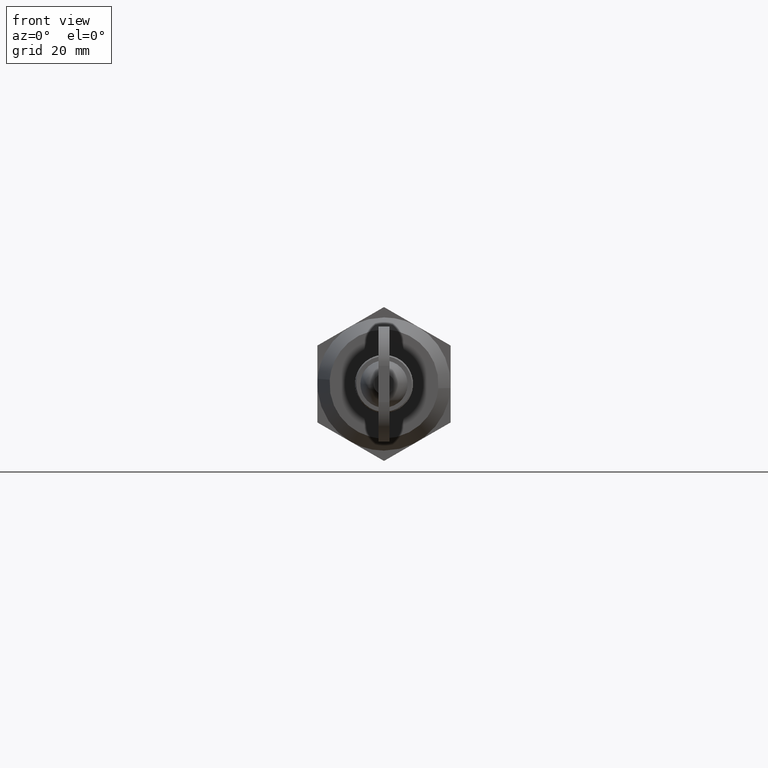
[diagram: clean part render]
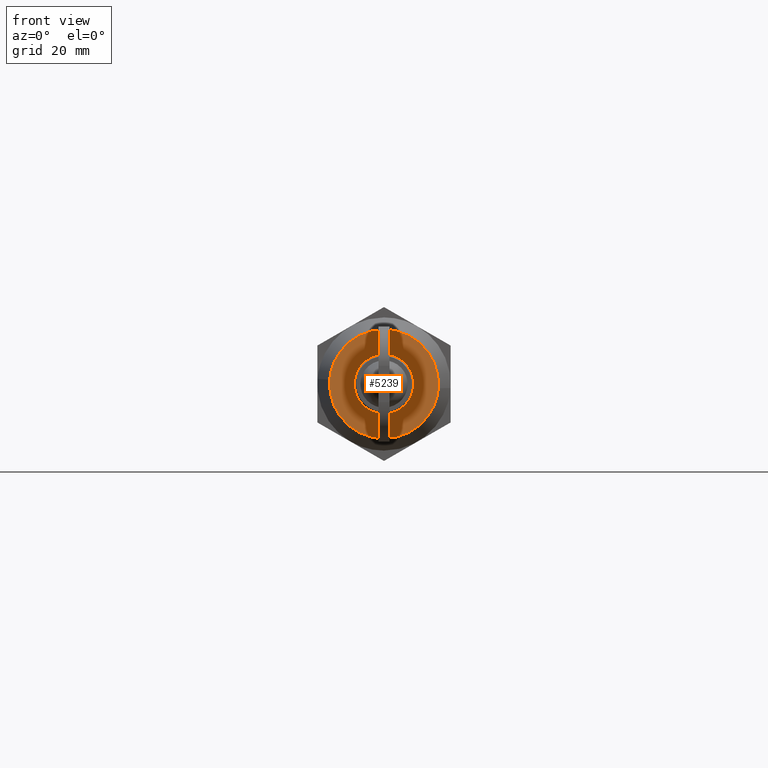
[diagram: same view with one face highlighted and labeled with its STEP entity id]
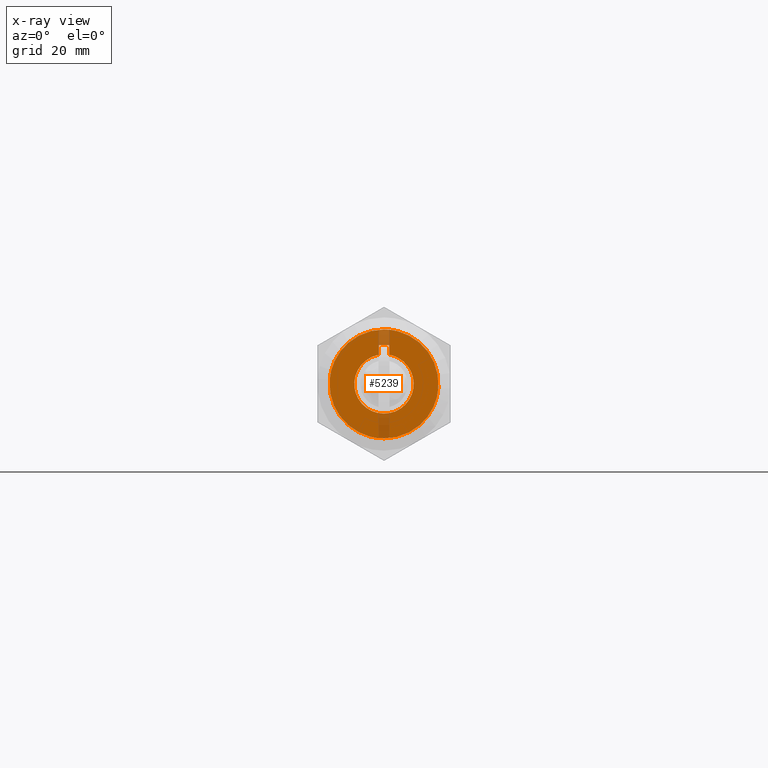
[diagram: x-ray of the same camera — body ghosted, the highlighted face saturated]
A machine part, front view. The second image highlights one B-rep face of the part: STEP entity #5239.
The next image is the same camera in x-ray: the body ghosted, the highlighted face saturated — about 7% of this face is hidden behind the body in this view.
In plain terms, the highlighted face is a freeform B-spline surface patch.
Its self-contained STEP definition (entity closure, byte-faithful):
#3572=CARTESIAN_POINT('',(0.000008000004097,8.967174715948481,0.705731955561907));
#3573=VERTEX_POINT('',#3572);
#3579=CARTESIAN_POINT('',(0.000008000000022,0.0,8.994903000000210));
#3580=VERTEX_POINT('',#3579);
#3581=CARTESIAN_POINT('',(0.000008000000022,0.0,8.994903000000210));
#3582=CARTESIAN_POINT('',(0.000008000000022,8.314802806547039,8.994903000000210));
#3583=CARTESIAN_POINT('',(0.000008000004097,8.967174715948481,0.705731955561907));
#3591=(BOUNDED_CURVE()B_SPLINE_CURVE(2,(#3581,#3582,#3583),.UNSPECIFIED.,.F.,.U.)B_SPLINE_CURVE_WITH_KNOTS((3,3),(0.0,0.236331300631924),.UNSPECIFIED.)CURVE()GEOMETRIC_REPRESENTATION_ITEM()RATIONAL_B_SPLINE_CURVE((1.0,0.723120658606185,0.969723356170055))REPRESENTATION_ITEM(''));
#3592=EDGE_CURVE('',#3580,#3573,#3591,.T.);
#3594=CARTESIAN_POINT('',(0.000008000004098,-8.967174715948481,-0.705731955561906));
#3595=VERTEX_POINT('',#3594);
#3596=CARTESIAN_POINT('',(0.000008000004098,-8.967174715948481,-0.705731955561906));
#3597=CARTESIAN_POINT('',(0.000008000000022,-8.994903000000210,-0.353410701415777));
#3598=CARTESIAN_POINT('',(0.000008000000022,-8.994903000000210,0.0));
#3599=CARTESIAN_POINT('',(0.000008000000022,-8.994903000000210,8.994903000000210));
#3600=CARTESIAN_POINT('',(0.000008000000022,0.0,8.994903000000210));
#3608=(BOUNDED_CURVE()B_SPLINE_CURVE(2,(#3596,#3597,#3598,#3599,#3600),.UNSPECIFIED.,.F.,.U.)B_SPLINE_CURVE_WITH_KNOTS((3,2,3),(0.736331300631924,0.750000000000000,1.0),.UNSPECIFIED.)CURVE()GEOMETRIC_REPRESENTATION_ITEM()RATIONAL_B_SPLINE_CURVE((0.969723356170055,0.983986122580363,1.0,0.707106781186547,1.0))REPRESENTATION_ITEM(''));
#3609=EDGE_CURVE('',#3595,#3580,#3608,.T.);
#3646=CARTESIAN_POINT('',(0.000008000000022,0.0,-8.994903000000210));
#3647=VERTEX_POINT('',#3646);
#3648=CARTESIAN_POINT('',(0.000008000000022,0.0,-8.994903000000210));
#3649=CARTESIAN_POINT('',(0.000008000000022,-8.314802806547093,-8.994903000000210));
#3650=CARTESIAN_POINT('',(0.000008000004098,-8.967174715948481,-0.705731955561906));
#3658=(BOUNDED_CURVE()B_SPLINE_CURVE(2,(#3648,#3649,#3650),.UNSPECIFIED.,.F.,.U.)B_SPLINE_CURVE_WITH_KNOTS((3,3),(0.500000000000000,0.736331300631925),.UNSPECIFIED.)CURVE()GEOMETRIC_REPRESENTATION_ITEM()RATIONAL_B_SPLINE_CURVE((1.0,0.723120658606184,0.969723356170058))REPRESENTATION_ITEM(''));
#3659=EDGE_CURVE('',#3647,#3595,#3658,.T.);
#3661=CARTESIAN_POINT('',(0.000008000004097,8.967174715948481,0.705731955561907));
#3662=CARTESIAN_POINT('',(0.000008000000022,8.994903000000209,0.353410701415778));
#3663=CARTESIAN_POINT('',(0.000008000000022,8.994903000000210,0.0));
#3664=CARTESIAN_POINT('',(0.000008000000022,8.994903000000210,-8.994903000000210));
#3665=CARTESIAN_POINT('',(0.000008000000022,0.0,-8.994903000000210));
#3673=(BOUNDED_CURVE()B_SPLINE_CURVE(2,(#3661,#3662,#3663,#3664,#3665),.UNSPECIFIED.,.F.,.U.)B_SPLINE_CURVE_WITH_KNOTS((3,2,3),(0.236331300631924,0.250000000000000,0.500000000000000),.UNSPECIFIED.)CURVE()GEOMETRIC_REPRESENTATION_ITEM()RATIONAL_B_SPLINE_CURVE((0.969723356170055,0.983986122580363,1.0,0.707106781186547,1.0))REPRESENTATION_ITEM(''));
#3674=EDGE_CURVE('',#3573,#3647,#3673,.T.);
#5014=CARTESIAN_POINT('',(0.000004000000001,0.875000000000000,4.821242059884569));
#5015=VERTEX_POINT('',#5014);
#5016=CARTESIAN_POINT('',(0.000004000000001,-0.875000000000000,4.821242059884569));
#5017=VERTEX_POINT('',#5016);
#5018=CARTESIAN_POINT('',(0.000003999999998,0.875000000000000,4.821242059884568));
#5019=CARTESIAN_POINT('',(0.000003999999998,5.281777095836039,4.021462685407600));
#5020=CARTESIAN_POINT('',(0.000003999999998,4.880270796453533,-0.439268657296200));
#5021=CARTESIAN_POINT('',(0.000003999999998,4.478764497071026,-4.900000000000000));
#5022=CARTESIAN_POINT('',(0.000003999999998,0.0,-4.900000000000000));
#5023=CARTESIAN_POINT('',(0.000003999999998,-4.478764497071023,-4.900000000000000));
#5024=CARTESIAN_POINT('',(0.000003999999998,-4.880270796453532,-0.439268657296203));
#5025=CARTESIAN_POINT('',(0.000003999999998,-5.281777095836040,4.021462685407600));
#5026=CARTESIAN_POINT('',(0.000003999999998,-0.875000000000000,4.821242059884568));
#5034=(BOUNDED_CURVE()B_SPLINE_CURVE(2,(#5018,#5019,#5020,#5021,#5022,#5023,#5024,#5025,#5026),.UNSPECIFIED.,.F.,.U.)B_SPLINE_CURVE_WITH_KNOTS((3,2,2,2,3),(0.0,0.250000000000000,0.500000000000000,0.750000000000000,1.0),.UNSPECIFIED.)CURVE()GEOMETRIC_REPRESENTATION_ITEM()RATIONAL_B_SPLINE_CURVE((1.0,0.738121488900820,1.0,0.738121488900820,1.0,0.738121488900820,1.0,0.738121488900820,1.0))REPRESENTATION_ITEM(''));
#5035=EDGE_CURVE('',#5015,#5017,#5034,.T.);
#5056=CARTESIAN_POINT('',(0.000004000000008,-0.875000000000000,6.400001000000099));
#5057=VERTEX_POINT('',#5056);
#5058=CARTESIAN_POINT('',(0.000004000000008,-0.875000000000000,6.400001000000099));
#5059=CARTESIAN_POINT('',(0.000004000000001,-0.875000000000000,4.821242059884569));
#5060=QUASI_UNIFORM_CURVE('',1,(#5058,#5059),.UNSPECIFIED.,.F.,.U.);
#5061=EDGE_CURVE('',#5057,#5017,#5060,.T.);
#5078=CARTESIAN_POINT('',(0.000004000000008,0.875000000000000,6.400001000000099));
#5079=VERTEX_POINT('',#5078);
#5080=CARTESIAN_POINT('',(0.000004000000008,0.875000000000000,6.400001000000099));
#5081=CARTESIAN_POINT('',(0.000004000000008,-0.875000000000000,6.400001000000099));
#5082=QUASI_UNIFORM_CURVE('',1,(#5080,#5081),.UNSPECIFIED.,.F.,.U.);
#5083=EDGE_CURVE('',#5079,#5057,#5082,.T.);
#5100=CARTESIAN_POINT('',(0.000004000000001,0.875000000000000,4.821242059884569));
#5101=CARTESIAN_POINT('',(0.000004000000008,0.875000000000000,6.400001000000099));
#5102=QUASI_UNIFORM_CURVE('',1,(#5100,#5101),.UNSPECIFIED.,.F.,.U.);
#5103=EDGE_CURVE('',#5015,#5079,#5102,.T.);
#5222=CARTESIAN_POINT('',(0.000004000000011,-9.890748308962630,-9.893493372809418));
#5223=CARTESIAN_POINT('',(0.000004000000011,-9.890748308962630,9.893492890285220));
#5224=CARTESIAN_POINT('',(0.000004000000011,9.890748630645430,-9.893493372809418));
#5225=CARTESIAN_POINT('',(0.000004000000011,9.890748630645430,9.893492890285220));
#5226=B_SPLINE_SURFACE_WITH_KNOTS('',1,1,((#5222,#5224),(#5223,#5225)),.UNSPECIFIED.,.F.,.F.,.U.,(2,2),(2,2),(0.0,19.786986263094640),(0.0,19.781496939608061),.UNSPECIFIED.);
#5227=ORIENTED_EDGE('',*,*,#3592,.T.);
#5228=ORIENTED_EDGE('',*,*,#3674,.T.);
#5229=ORIENTED_EDGE('',*,*,#3659,.T.);
#5230=ORIENTED_EDGE('',*,*,#3609,.T.);
#5231=EDGE_LOOP('',(#5227,#5228,#5229,#5230));
#5232=FACE_OUTER_BOUND('',#5231,.T.);
#5233=ORIENTED_EDGE('',*,*,#5035,.F.);
#5234=ORIENTED_EDGE('',*,*,#5103,.T.);
#5235=ORIENTED_EDGE('',*,*,#5083,.T.);
#5236=ORIENTED_EDGE('',*,*,#5061,.T.);
#5237=EDGE_LOOP('',(#5233,#5234,#5235,#5236));
#5238=FACE_BOUND('',#5237,.T.);
#5239=ADVANCED_FACE('',(#5232,#5238),#5226,.T.);